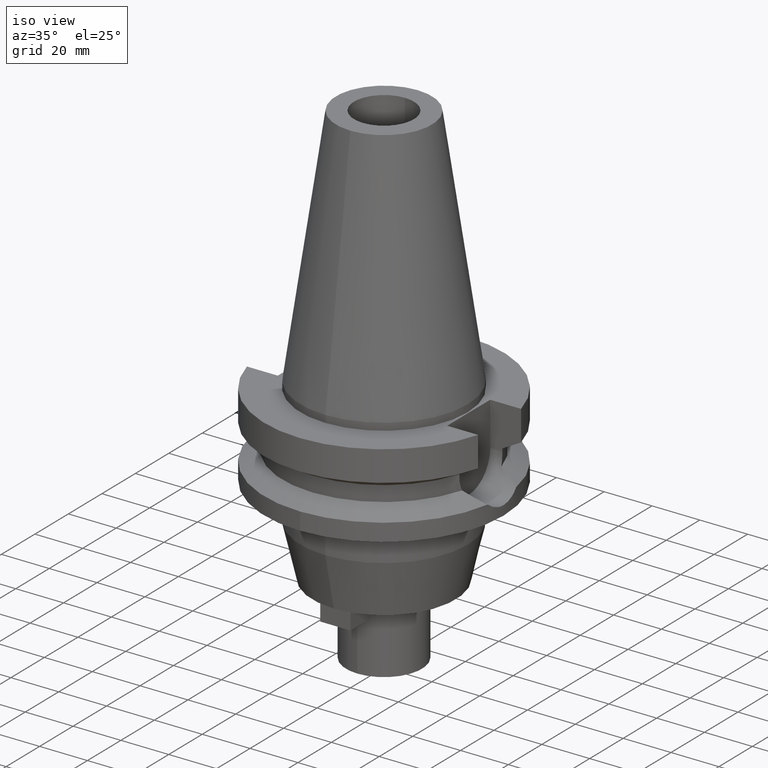
[diagram: clean part render]
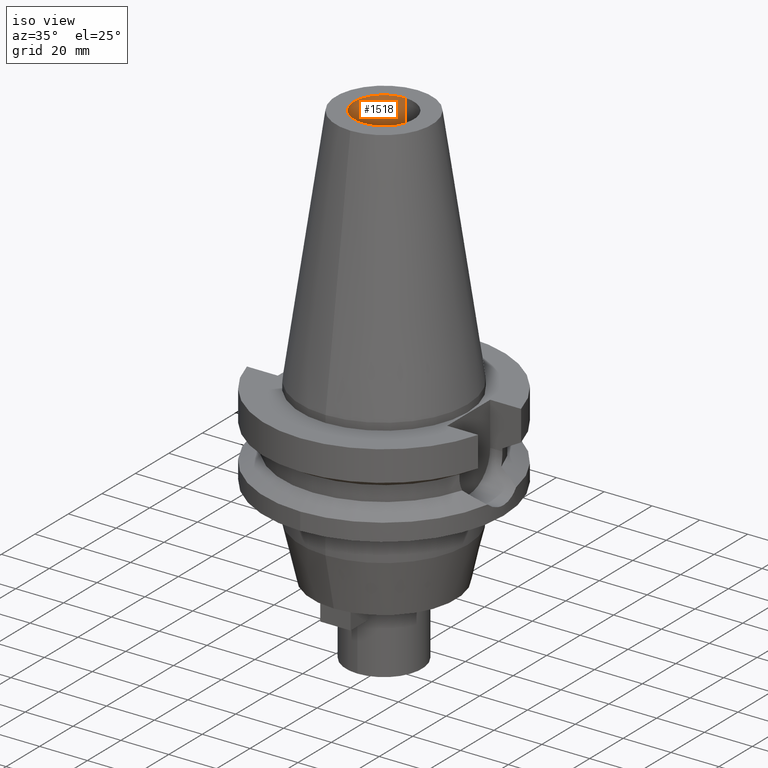
[diagram: same view with one face highlighted and labeled with its STEP entity id]
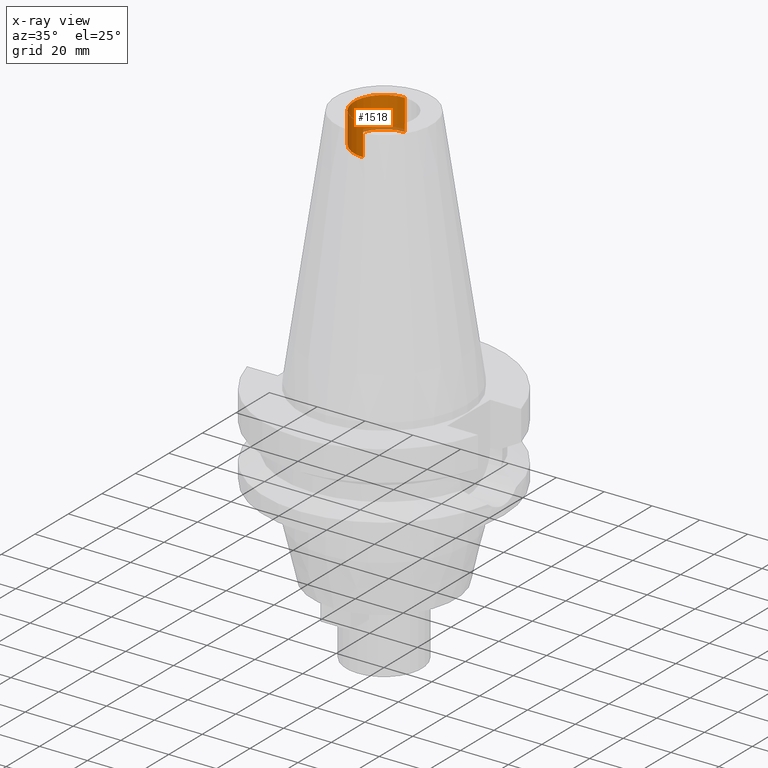
[diagram: x-ray of the same camera — body ghosted, the highlighted face saturated]
A machine part, iso view. The second image highlights one B-rep face of the part: STEP entity #1518.
The next image is the same camera in x-ray: the body ghosted, the highlighted face saturated — about 5% of this face is hidden behind the body in this view.
In plain terms, the highlighted cylindrical surface (edge-blend (fillet) strip) has radius 12.5 mm, axis along (0, 0, -1).
Its self-contained STEP definition (entity closure, byte-faithful):
#17=DIRECTION('',(0.E0,0.E0,1.E0));
#18=VECTOR('',#17,1.3E1);
#19=CARTESIAN_POINT('',(0.E0,1.25E1,8.88E1));
#20=LINE('',#19,#18);
#25=DIRECTION('',(0.E0,0.E0,1.E0));
#26=VECTOR('',#25,1.3E1);
#27=CARTESIAN_POINT('',(0.E0,-1.25E1,8.88E1));
#28=LINE('',#27,#26);
#32=CARTESIAN_POINT('',(0.E0,1.373318920564E-14,8.88E1));
#33=DIRECTION('',(0.E0,0.E0,-1.E0));
#34=DIRECTION('',(0.E0,-1.E0,0.E0));
#35=AXIS2_PLACEMENT_3D('',#32,#33,#34);
#1136=CARTESIAN_POINT('',(0.E0,1.373318920564E-14,1.018E2));
#1137=DIRECTION('',(0.E0,0.E0,1.E0));
#1138=DIRECTION('',(0.E0,1.E0,0.E0));
#1139=AXIS2_PLACEMENT_3D('',#1136,#1137,#1138);
#1284=CARTESIAN_POINT('',(0.E0,1.25E1,8.88E1));
#1285=CARTESIAN_POINT('',(0.E0,1.25E1,1.018E2));
#1286=VERTEX_POINT('',#1284);
#1287=VERTEX_POINT('',#1285);
#1288=CARTESIAN_POINT('',(0.E0,-1.25E1,1.018E2));
#1289=VERTEX_POINT('',#1288);
#1290=CARTESIAN_POINT('',(0.E0,-1.25E1,8.88E1));
#1291=VERTEX_POINT('',#1290);
#1505=CARTESIAN_POINT('',(0.E0,1.373318920564E-14,1.1214E2));
#1506=DIRECTION('',(0.E0,0.E0,-1.E0));
#1507=DIRECTION('',(0.E0,-1.E0,0.E0));
#1508=AXIS2_PLACEMENT_3D('',#1505,#1506,#1507);
#1509=CYLINDRICAL_SURFACE('',#1508,1.25E1);
#1510=ORIENTED_EDGE('',*,*,#1494,.F.);
#1512=ORIENTED_EDGE('',*,*,#1511,.F.);
#1513=ORIENTED_EDGE('',*,*,#1498,.T.);
#1515=ORIENTED_EDGE('',*,*,#1514,.F.);
#1516=EDGE_LOOP('',(#1510,#1512,#1513,#1515));
#1517=FACE_OUTER_BOUND('',#1516,.F.);
#36=CIRCLE('',#35,1.25E1);
#1140=CIRCLE('',#1139,1.25E1);
#1494=EDGE_CURVE('',#1286,#1287,#20,.T.);
#1498=EDGE_CURVE('',#1291,#1289,#28,.T.);
#1511=EDGE_CURVE('',#1291,#1286,#36,.T.);
#1514=EDGE_CURVE('',#1287,#1289,#1140,.T.);
#1518=ADVANCED_FACE('',(#1517),#1509,.F.);